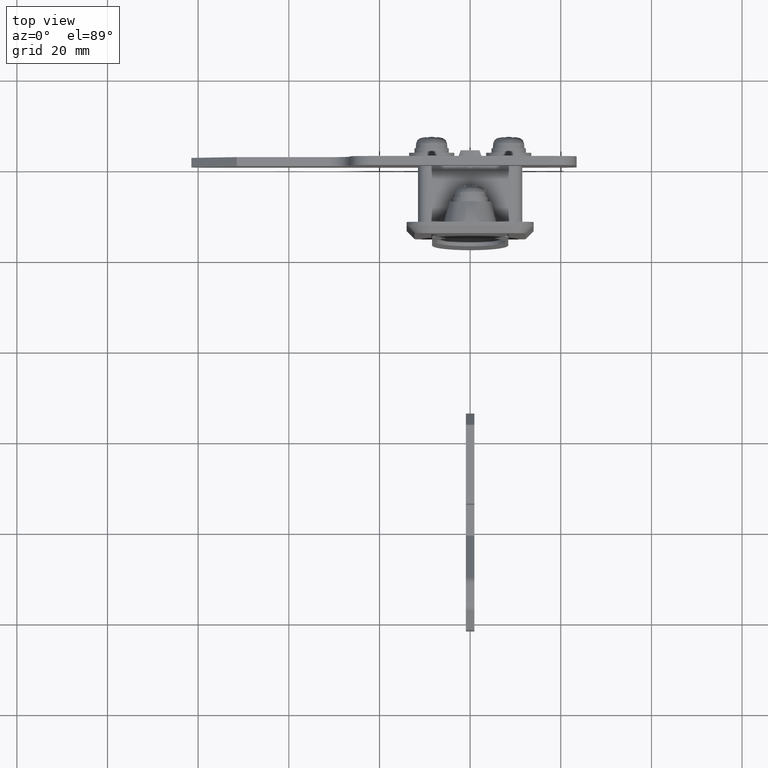
[diagram: clean part render]
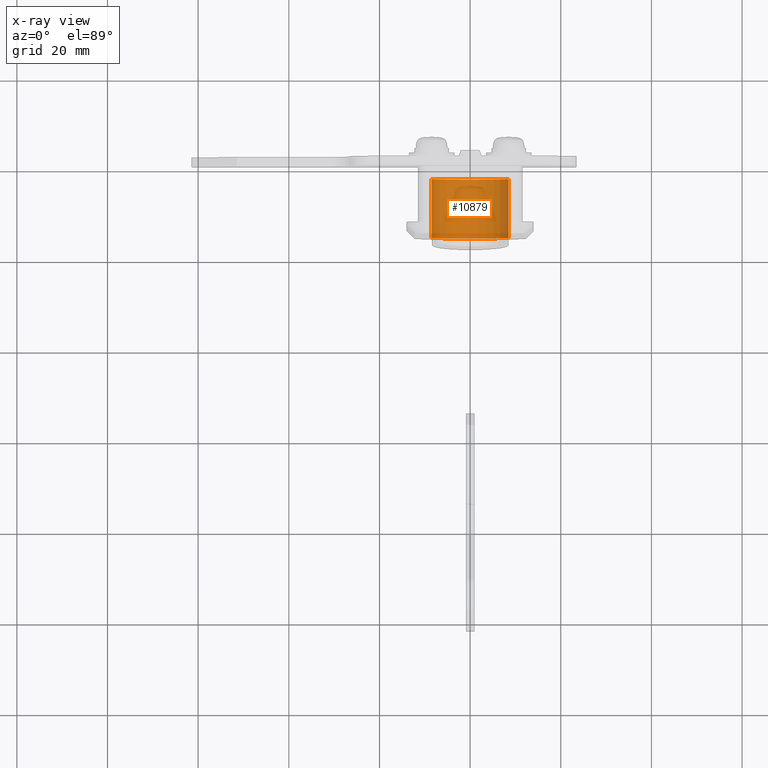
[diagram: x-ray — body ghosted, one internal face saturated and labeled with its STEP entity id]
A machine part, top view, then the same camera in x-ray: the body is ghosted and one INTERNAL B-rep face — a face not visible from any outside direction — is saturated and labeled: STEP entity #10879.
In plain terms, the highlighted face is a freeform B-spline surface patch.
Its self-contained STEP definition (entity closure, byte-faithful):
#10811=CARTESIAN_POINT('',(-1.675000000000118,-8.497087262292235,-37.777495939383073));
#10812=CARTESIAN_POINT('',(-15.333125000000001,-8.497087262292235,-37.777495939383073));
#10813=CARTESIAN_POINT('',(-1.675000000000118,-8.731557619164674,-46.731557619164647));
#10814=CARTESIAN_POINT('',(-15.333124999999997,-8.731557619164674,-46.731557619164647));
#10815=CARTESIAN_POINT('',(-1.675000000000118,0.222504060616913,-46.497087262292240));
#10816=CARTESIAN_POINT('',(-15.333125000000001,0.222504060616913,-46.497087262292240));
#10817=CARTESIAN_POINT('',(-1.675000000000118,9.176565740398491,-46.262616905419833));
#10818=CARTESIAN_POINT('',(-15.333124999999997,9.176565740398491,-46.262616905419833));
#10819=CARTESIAN_POINT('',(-1.675000000000118,8.473797336731590,-37.333097686313330));
#10820=CARTESIAN_POINT('',(-15.333125000000001,8.473797336731590,-37.333097686313330));
#10828=(BOUNDED_SURFACE()B_SPLINE_SURFACE(1,2,((#10811,#10813,#10815,#10817,#10819),(#10812,#10814,#10816,#10818,#10820)),.UNSPECIFIED.,.F.,.F.,.U.)B_SPLINE_SURFACE_WITH_KNOTS((2,2),(3,2,3),(0.0,13.658124999999879),(0.0,14.607552802872430,29.215105605744849),.UNSPECIFIED.)GEOMETRIC_REPRESENTATION_ITEM()RATIONAL_B_SPLINE_SURFACE(((1.0,0.688354575693754,1.0,0.688354575693754,1.0),(1.0,0.688354575693754,1.0,0.688354575693754,1.0)))REPRESENTATION_ITEM('')SURFACE());
#10829=CARTESIAN_POINT('',(-15.0,8.500000000000000,-38.0));
#10830=VERTEX_POINT('',#10829);
#10831=CARTESIAN_POINT('',(-15.0,-8.500000000000000,-38.0));
#10832=VERTEX_POINT('',#10831);
#10833=CARTESIAN_POINT('',(-15.0,8.500000000000000,-38.0));
#10834=CARTESIAN_POINT('',(-14.999999999999995,8.500000000000002,-46.500000000000000));
#10835=CARTESIAN_POINT('',(-15.0,0.0,-46.500000000000000));
#10836=CARTESIAN_POINT('',(-14.999999999999995,-8.500000000000002,-46.500000000000000));
#10837=CARTESIAN_POINT('',(-15.0,-8.500000000000000,-38.0));
#10845=(BOUNDED_CURVE()B_SPLINE_CURVE(2,(#10833,#10834,#10835,#10836,#10837),.UNSPECIFIED.,.F.,.U.)B_SPLINE_CURVE_WITH_KNOTS((3,2,3),(0.0,0.500000000000000,1.0),.UNSPECIFIED.)CURVE()GEOMETRIC_REPRESENTATION_ITEM()RATIONAL_B_SPLINE_CURVE((1.0,0.707106781186548,1.0,0.707106781186548,1.0))REPRESENTATION_ITEM(''));
#10846=EDGE_CURVE('',#10830,#10832,#10845,.T.);
#10847=ORIENTED_EDGE('',*,*,#10846,.T.);
#10848=CARTESIAN_POINT('',(-2.000000000000115,-8.500000000000000,-38.0));
#10849=VERTEX_POINT('',#10848);
#10850=CARTESIAN_POINT('',(-2.000000000000115,-8.500000000000000,-38.0));
#10851=CARTESIAN_POINT('',(-15.0,-8.500000000000000,-38.0));
#10852=QUASI_UNIFORM_CURVE('',1,(#10850,#10851),.UNSPECIFIED.,.F.,.U.);
#10853=EDGE_CURVE('',#10849,#10832,#10852,.T.);
#10854=ORIENTED_EDGE('',*,*,#10853,.F.);
#10855=CARTESIAN_POINT('',(-2.000000000000115,8.500000000000000,-38.0));
#10856=VERTEX_POINT('',#10855);
#10857=CARTESIAN_POINT('',(-2.000000000000115,8.500000000000000,-38.0));
#10858=CARTESIAN_POINT('',(-2.000000000000114,8.500000000000002,-46.500000000000000));
#10859=CARTESIAN_POINT('',(-2.000000000000115,0.0,-46.500000000000000));
#10860=CARTESIAN_POINT('',(-2.000000000000114,-8.500000000000002,-46.500000000000000));
#10861=CARTESIAN_POINT('',(-2.000000000000115,-8.500000000000000,-38.0));
#10869=(BOUNDED_CURVE()B_SPLINE_CURVE(2,(#10857,#10858,#10859,#10860,#10861),.UNSPECIFIED.,.F.,.U.)B_SPLINE_CURVE_WITH_KNOTS((3,2,3),(0.0,0.500000000000000,1.0),.UNSPECIFIED.)CURVE()GEOMETRIC_REPRESENTATION_ITEM()RATIONAL_B_SPLINE_CURVE((1.0,0.707106781186548,1.0,0.707106781186548,1.0))REPRESENTATION_ITEM(''));
#10870=EDGE_CURVE('',#10856,#10849,#10869,.T.);
#10871=ORIENTED_EDGE('',*,*,#10870,.F.);
#10872=CARTESIAN_POINT('',(-2.000000000000115,8.500000000000000,-38.0));
#10873=CARTESIAN_POINT('',(-15.0,8.500000000000000,-38.0));
#10874=QUASI_UNIFORM_CURVE('',1,(#10872,#10873),.UNSPECIFIED.,.F.,.U.);
#10875=EDGE_CURVE('',#10856,#10830,#10874,.T.);
#10876=ORIENTED_EDGE('',*,*,#10875,.T.);
#10877=EDGE_LOOP('',(#10847,#10854,#10871,#10876));
#10878=FACE_OUTER_BOUND('',#10877,.T.);
#10879=ADVANCED_FACE('',(#10878),#10828,.F.);